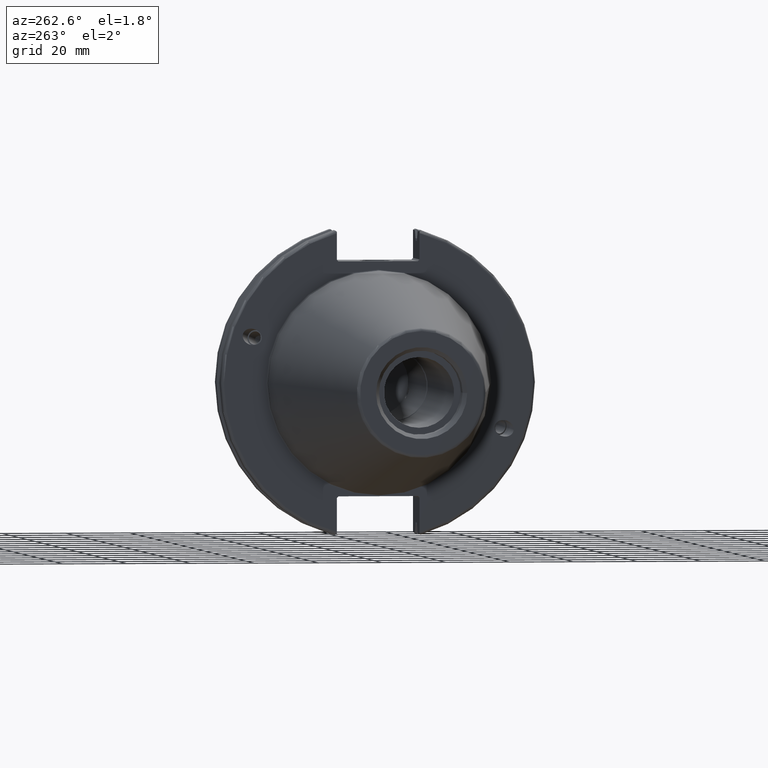
[diagram: clean part render]
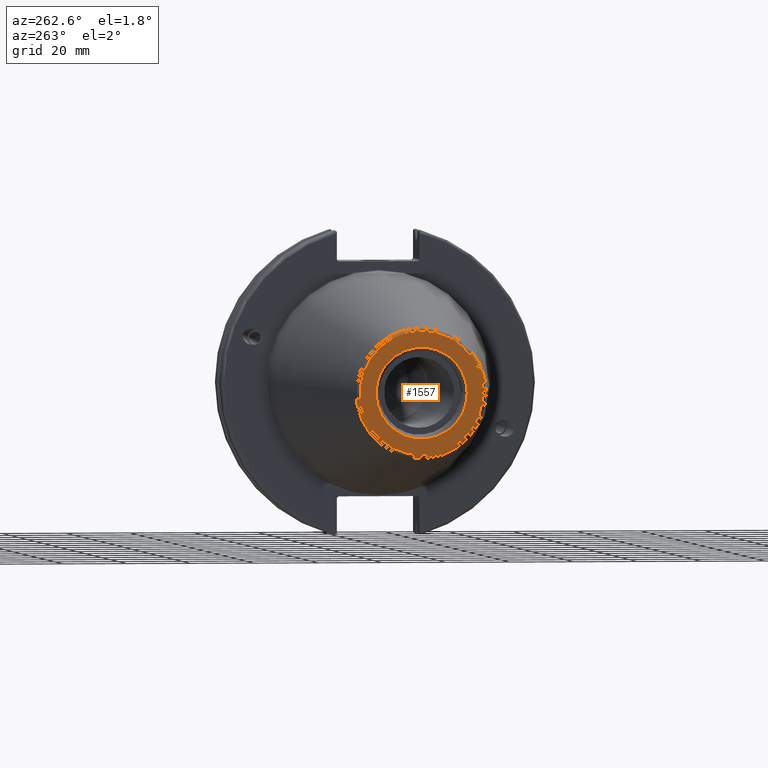
[diagram: same view with one face highlighted and labeled with its STEP entity id]
A machine part, auxiliary view. The second image highlights one B-rep face of the part: STEP entity #1557.
In plain terms, the highlighted planar face has unit normal (-1, 0, 0).
Its self-contained STEP definition (entity closure, byte-faithful):
#101=FACE_BOUND('',#322,.T.);
#135=PLANE('',#1739);
#212=FACE_OUTER_BOUND('',#321,.T.);
#321=EDGE_LOOP('',(#1334));
#322=EDGE_LOOP('',(#1335));
#418=CIRCLE('',#1738,19.2435889303637);
#419=CIRCLE('',#1740,14.2875);
#765=VERTEX_POINT('',#3085);
#766=VERTEX_POINT('',#3089);
#972=EDGE_CURVE('',#765,#765,#418,.T.);
#973=EDGE_CURVE('',#766,#766,#419,.T.);
#1334=ORIENTED_EDGE('',*,*,#972,.F.);
#1335=ORIENTED_EDGE('',*,*,#973,.T.);
#1557=ADVANCED_FACE('',(#212,#101),#135,.T.);
#1738=AXIS2_PLACEMENT_3D('',#3087,#2114,#2115);
#1739=AXIS2_PLACEMENT_3D('',#3088,#2116,#2117);
#1740=AXIS2_PLACEMENT_3D('',#3090,#2118,#2119);
#2114=DIRECTION('center_axis',(1.,0.,0.));
#2115=DIRECTION('ref_axis',(0.,-1.,1.83697019872103E-16));
#2116=DIRECTION('center_axis',(-1.,0.,0.));
#2117=DIRECTION('ref_axis',(0.,0.,1.));
#2118=DIRECTION('center_axis',(1.,0.,0.));
#2119=DIRECTION('ref_axis',(0.,0.,-1.));
#3085=CARTESIAN_POINT('',(-101.6,-2.35665995876774E-15,19.2435889303637));
#3087=CARTESIAN_POINT('Origin',(-101.6,0.,0.));
#3088=CARTESIAN_POINT('Origin',(-101.6,20.1083333333333,0.));
#3089=CARTESIAN_POINT('',(-101.6,-14.2875,-1.74971411428178E-15));
#3090=CARTESIAN_POINT('Origin',(-101.6,0.,0.));